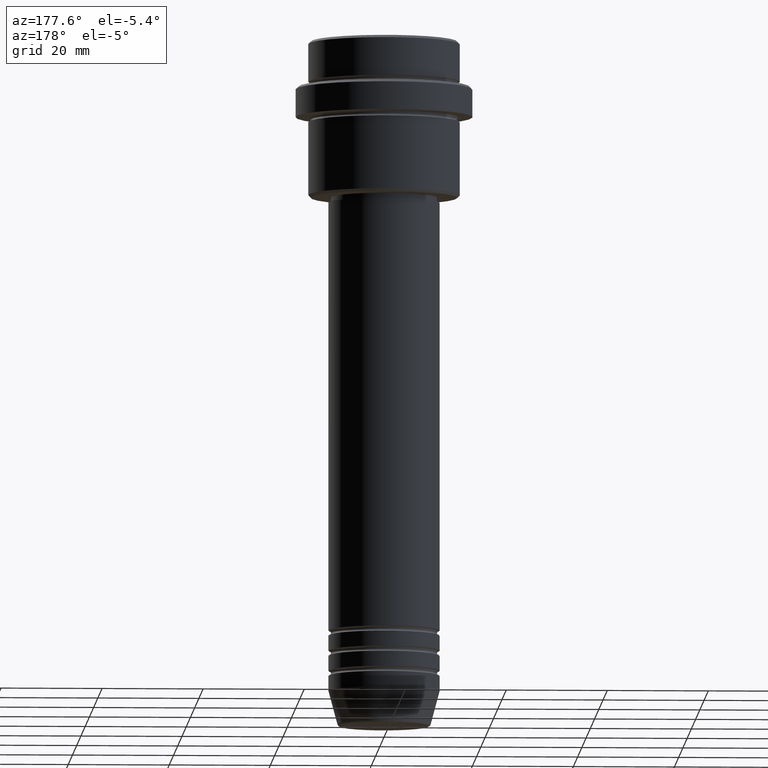
[diagram: clean part render]
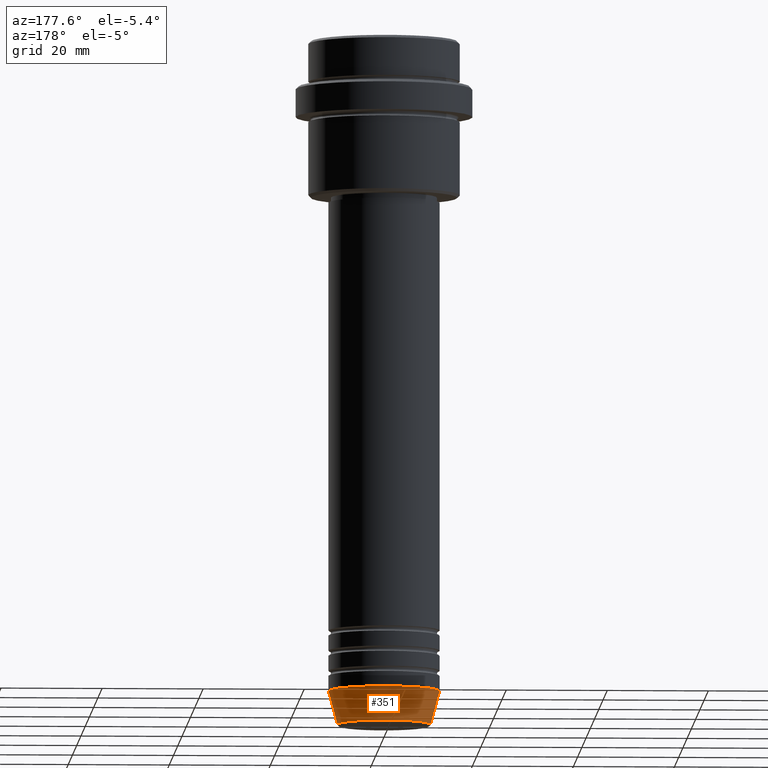
[diagram: same view with one face highlighted and labeled with its STEP entity id]
A machine part, auxiliary view. The second image highlights one B-rep face of the part: STEP entity #351.
In plain terms, the highlighted conical surface has half-angle 15 deg.
Its self-contained STEP definition (entity closure, byte-faithful):
#1 = VERTEX_POINT ( 'NONE', #780 ) ;
#3 = CARTESIAN_POINT ( 'NONE',  ( 0.000000000000000000, 0.000000000000000000, -129.0000000000000000 ) ) ;
#13 = DIRECTION ( 'NONE',  ( -0.000000000000000000, -0.000000000000000000, 1.000000000000000000 ) ) ;
#174 = CARTESIAN_POINT ( 'NONE',  ( 11.00000000000000000, 0.000000000000000000, -129.0000000000000000 ) ) ;
#187 = CIRCLE ( 'NONE', #1279, 9.223655072137189492 ) ;
#218 = CARTESIAN_POINT ( 'NONE',  ( 9.223655072137189492, 0.000000000000000000, -135.6294095225512706 ) ) ;
#339 = DIRECTION ( 'NONE',  ( -0.2588190451025213501, 3.169619151431772337E-17, 0.9659258262890680902 ) ) ;
#351 = ADVANCED_FACE ( 'NONE', ( #987 ), #1349, .T. ) ;
#388 = CARTESIAN_POINT ( 'NONE',  ( 0.000000000000000000, 0.000000000000000000, -135.6294095225512706 ) ) ;
#434 = DIRECTION ( 'NONE',  ( 1.000000000000000000, 0.000000000000000000, 0.000000000000000000 ) ) ;
#555 = EDGE_CURVE ( 'NONE', #748, #1, #823, .T. ) ;
#581 = DIRECTION ( 'NONE',  ( 1.000000000000000000, 0.000000000000000000, 0.000000000000000000 ) ) ;
#582 = ORIENTED_EDGE ( 'NONE', *, *, #782, .T. ) ;
#594 = DIRECTION ( 'NONE',  ( 0.2588190451025213501, 0.000000000000000000, 0.9659258262890680902 ) ) ;
#611 = CARTESIAN_POINT ( 'NONE',  ( -9.223655072137189492, 1.238341722557647202E-15, -135.6294095225512706 ) ) ;
#639 = LINE ( 'NONE', #1316, #1076 ) ;
#696 = DIRECTION ( 'NONE',  ( 1.000000000000000000, 0.000000000000000000, 0.000000000000000000 ) ) ;
#724 = LINE ( 'NONE', #923, #1354 ) ;
#744 = ORIENTED_EDGE ( 'NONE', *, *, #555, .F. ) ;
#748 = VERTEX_POINT ( 'NONE', #174 ) ;
#780 = CARTESIAN_POINT ( 'NONE',  ( -11.00000000000000000, 1.347111479062088405E-15, -129.0000000000000000 ) ) ;
#782 = EDGE_CURVE ( 'NONE', #816, #1065, #187, .T. ) ;
#791 = EDGE_CURVE ( 'NONE', #1065, #1, #639, .T. ) ;
#816 = VERTEX_POINT ( 'NONE', #218 ) ;
#819 = DIRECTION ( 'NONE',  ( -0.000000000000000000, -0.000000000000000000, 1.000000000000000000 ) ) ;
#823 = CIRCLE ( 'NONE', #1167, 11.00000000000000000 ) ;
#879 = CARTESIAN_POINT ( 'NONE',  ( 0.000000000000000000, 0.000000000000000000, -129.0000000000000000 ) ) ;
#923 = CARTESIAN_POINT ( 'NONE',  ( 11.00000000000000000, 0.000000000000000000, -129.0000000000000000 ) ) ;
#968 = EDGE_CURVE ( 'NONE', #816, #748, #724, .T. ) ;
#987 = FACE_OUTER_BOUND ( 'NONE', #1176, .T. ) ;
#1065 = VERTEX_POINT ( 'NONE', #611 ) ;
#1076 = VECTOR ( 'NONE', #339, 1000.000000000000000 ) ;
#1122 = AXIS2_PLACEMENT_3D ( 'NONE', #879, #13, #581 ) ;
#1167 = AXIS2_PLACEMENT_3D ( 'NONE', #3, #1275, #434 ) ;
#1176 = EDGE_LOOP ( 'NONE', ( #582, #1368, #744, #1416 ) ) ;
#1275 = DIRECTION ( 'NONE',  ( -0.000000000000000000, -0.000000000000000000, 1.000000000000000000 ) ) ;
#1279 = AXIS2_PLACEMENT_3D ( 'NONE', #388, #819, #696 ) ;
#1316 = CARTESIAN_POINT ( 'NONE',  ( -11.00000000000000000, 1.347111479062088405E-15, -129.0000000000000000 ) ) ;
#1349 = CONICAL_SURFACE ( 'NONE', #1122, 11.00000000000000000, 0.2617993877991500740 ) ;
#1354 = VECTOR ( 'NONE', #594, 1000.000000000000000 ) ;
#1368 = ORIENTED_EDGE ( 'NONE', *, *, #791, .T. ) ;
#1416 = ORIENTED_EDGE ( 'NONE', *, *, #968, .F. ) ;